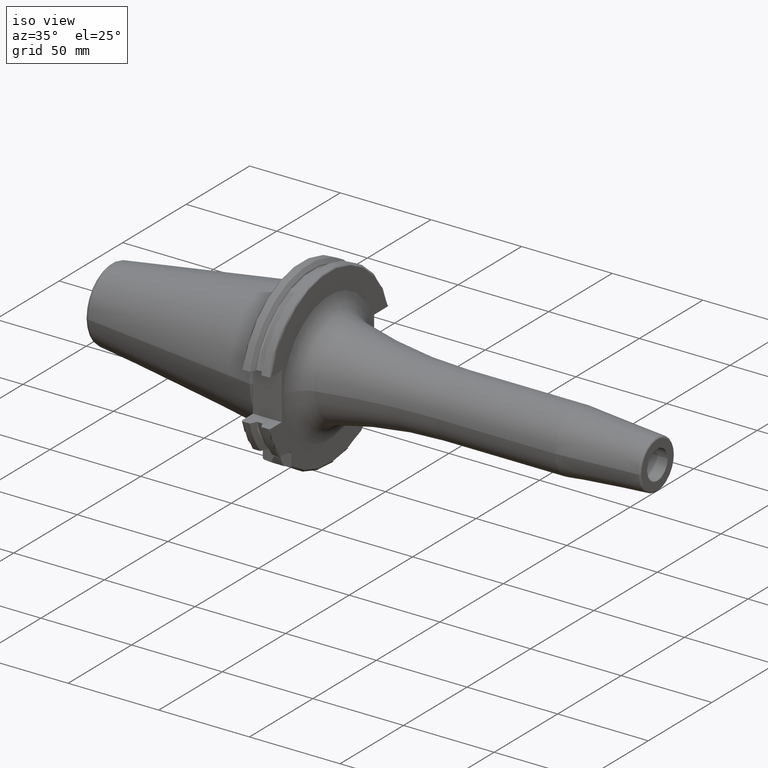
[diagram: clean part render]
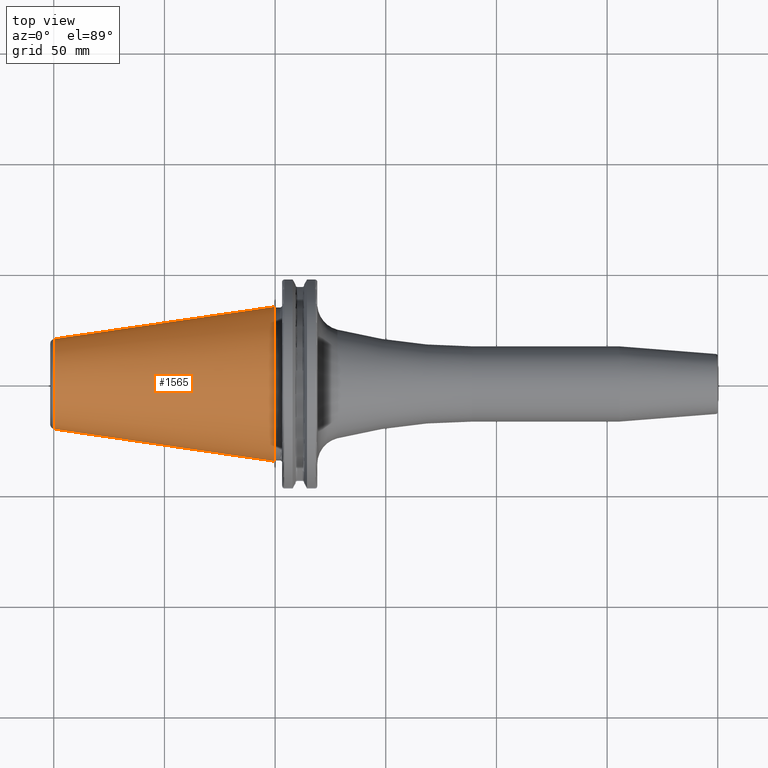
[diagram: tour spotlight — one face highlighted and labeled with its STEP entity id]
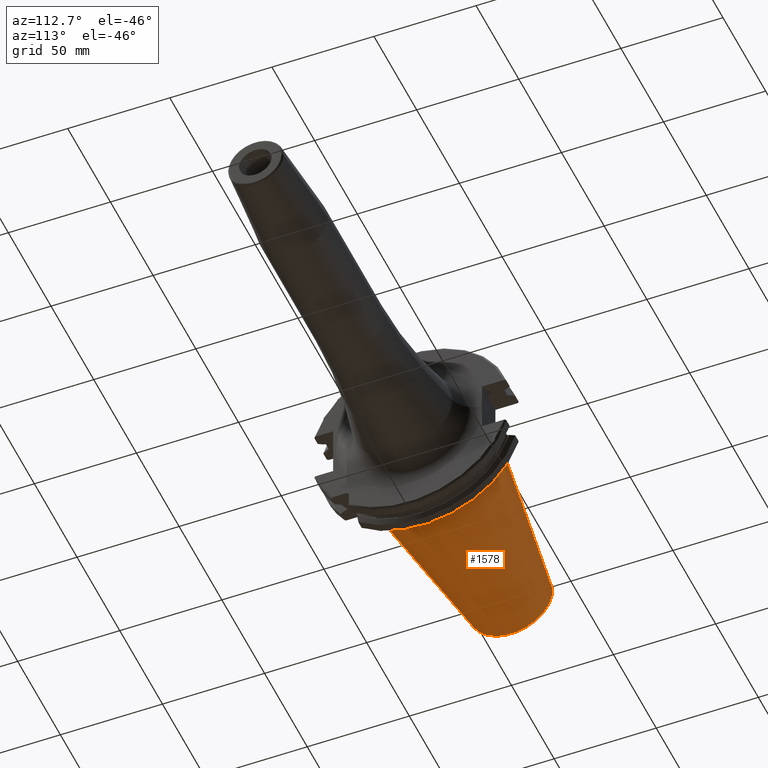
[diagram: tour spotlight — one face highlighted and labeled with its STEP entity id]
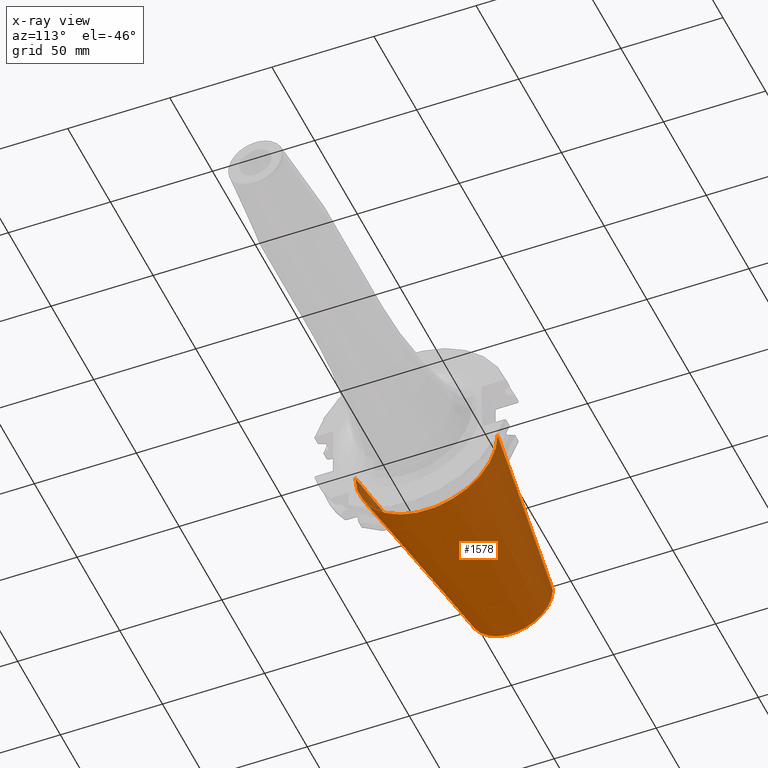
[diagram: x-ray of the same camera — body ghosted, this tour face saturated]
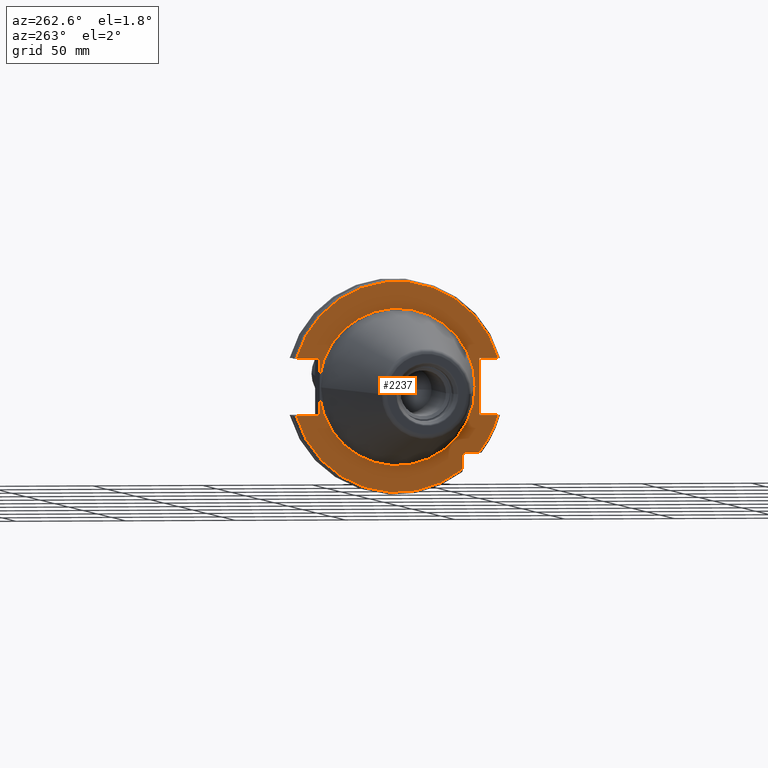
[diagram: tour spotlight — one face highlighted and labeled with its STEP entity id]
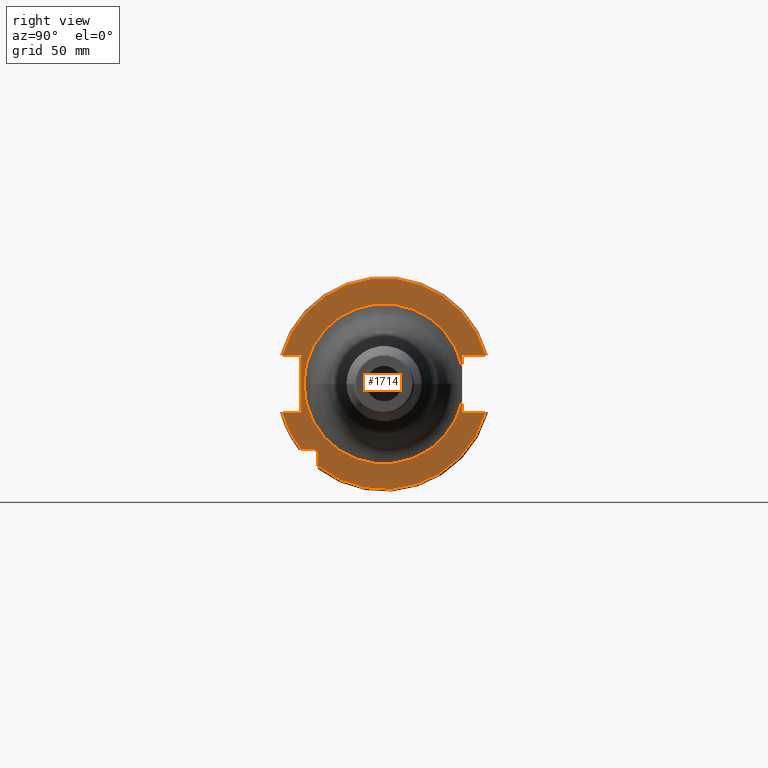
[diagram: tour spotlight — one face highlighted and labeled with its STEP entity id]
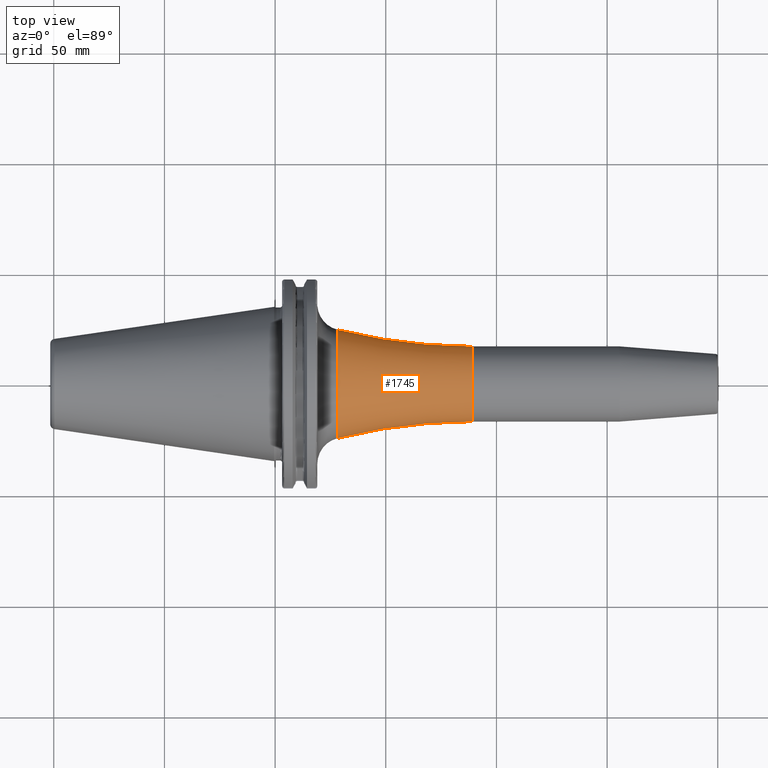
[diagram: tour spotlight — one face highlighted and labeled with its STEP entity id]
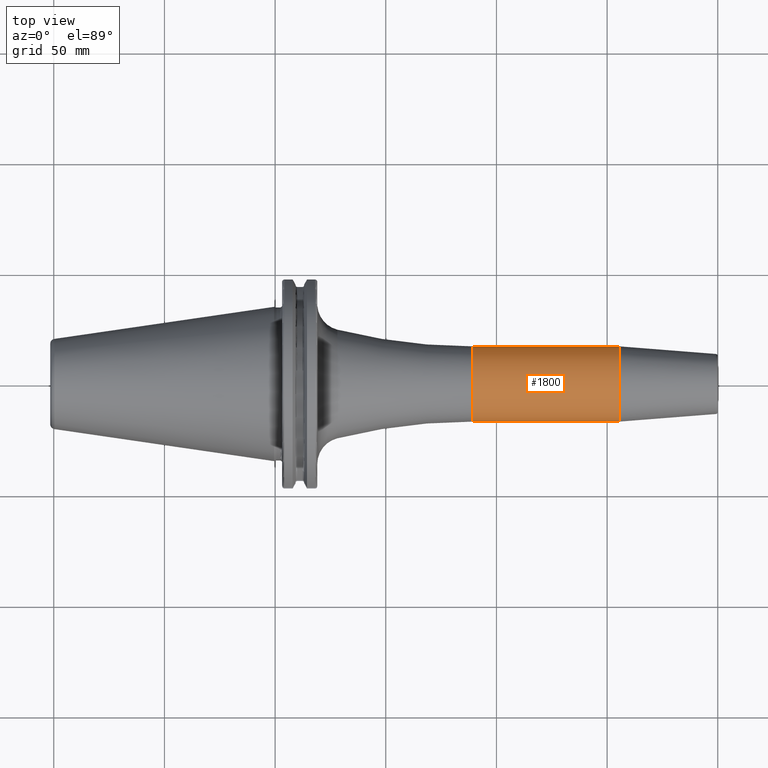
[diagram: tour spotlight — one face highlighted and labeled with its STEP entity id]
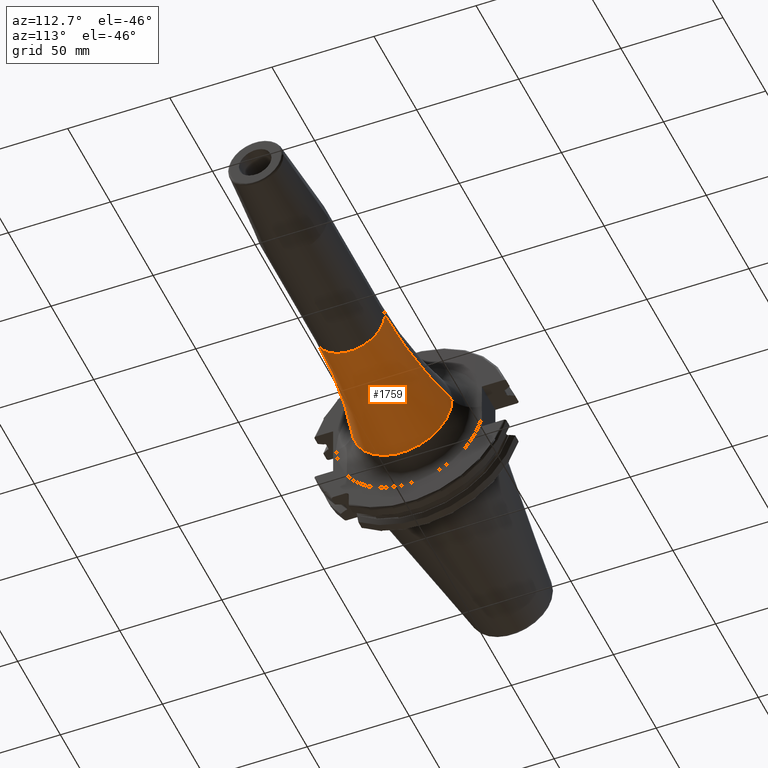
[diagram: tour spotlight — one face highlighted and labeled with its STEP entity id]
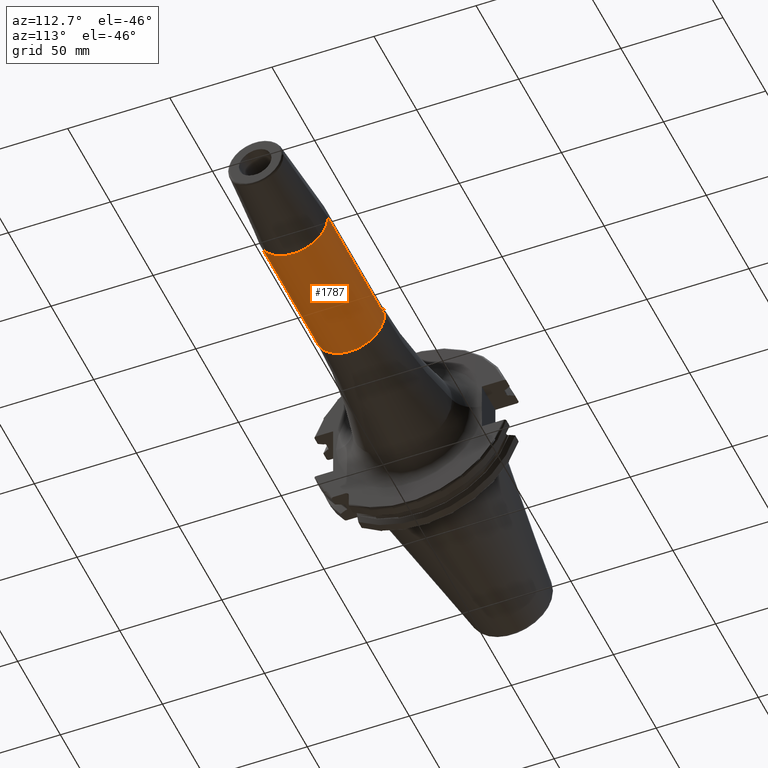
[diagram: tour spotlight — one face highlighted and labeled with its STEP entity id]
A machine part: a face-by-face anatomy tour. The part has 95 B-rep faces; the first image is the clean iso view, then the 8 largest visible faces are spotlighted one at a time (largest first), each with its STEP entity span.

Face 1 — top view, entity #1565. In plain terms, the highlighted conical surface has half-angle 8.298 deg.
Definition (entity closure, byte-faithful):
#37=CARTESIAN_POINT('',(-9.967471700563E1,0.E0,0.E0));
#38=DIRECTION('',(1.E0,0.E0,0.E0));
#39=DIRECTION('',(0.E0,1.E0,0.E0));
#40=AXIS2_PLACEMENT_3D('',#37,#38,#39);
#42=CARTESIAN_POINT('',(-4.896823332305E-1,0.E0,0.E0));
#43=DIRECTION('',(1.E0,0.E0,0.E0));
#44=DIRECTION('',(0.E0,1.E0,0.E0));
#45=AXIS2_PLACEMENT_3D('',#42,#43,#44);
#47=DIRECTION('',(-9.895312636440E-1,-1.443186691705E-1,0.E0));
#48=VECTOR('',#47,1.002343617797E2);
#49=CARTESIAN_POINT('',(-4.896823332305E-1,3.485358204157E1,0.E0));
#50=LINE('',#49,#48);
#51=DIRECTION('',(-9.895312636440E-1,1.443186691705E-1,0.E0));
#52=VECTOR('',#51,1.002343617797E2);
#53=CARTESIAN_POINT('',(-4.896823332305E-1,-3.485358204157E1,0.E0));
#54=LINE('',#53,#52);
#1244=CARTESIAN_POINT('',(-9.967471700563E1,2.038789234437E1,0.E0));
#1246=VERTEX_POINT('',#1244);
#1248=CARTESIAN_POINT('',(-9.967471700563E1,-2.038789234437E1,0.E0));
#1250=VERTEX_POINT('',#1248);
#1312=CARTESIAN_POINT('',(-4.896823332305E-1,3.485358204157E1,0.E0));
#1313=VERTEX_POINT('',#1312);
#1314=CARTESIAN_POINT('',(-4.896823332305E-1,-3.485358204157E1,0.E0));
#1315=VERTEX_POINT('',#1314);
#1551=CARTESIAN_POINT('',(-5.008219966943E1,0.E0,0.E0));
#1552=DIRECTION('',(1.E0,0.E0,0.E0));
#1553=DIRECTION('',(0.E0,-1.E0,0.E0));
#1554=AXIS2_PLACEMENT_3D('',#1551,#1552,#1553);
#1555=CONICAL_SURFACE('',#1554,2.762073719297E1,8.297826828206E0);
#1557=ORIENTED_EDGE('',*,*,#1556,.F.);
#1559=ORIENTED_EDGE('',*,*,#1558,.T.);
#1561=ORIENTED_EDGE('',*,*,#1560,.T.);
#1562=ORIENTED_EDGE('',*,*,#1544,.F.);
#1563=EDGE_LOOP('',(#1557,#1559,#1561,#1562));
#1564=FACE_OUTER_BOUND('',#1563,.F.);
#1565=ADVANCED_FACE('',(#1564),#1555,.T.);
#41=CIRCLE('',#40,2.038789234437E1);
#46=CIRCLE('',#45,3.485358204157E1);
#1544=EDGE_CURVE('',#1246,#1250,#41,.T.);
#1556=EDGE_CURVE('',#1313,#1246,#50,.T.);
#1558=EDGE_CURVE('',#1313,#1315,#46,.T.);
#1560=EDGE_CURVE('',#1315,#1250,#54,.T.);

Face 2 — auxiliary view, entity #1578. An x-ray twin of the same camera follows (body ghosted, this face saturated) — the face is partly hidden behind the body. In plain terms, the highlighted conical surface has half-angle 8.298 deg.
Definition (entity closure, byte-faithful):
#32=CARTESIAN_POINT('',(-9.967471700563E1,0.E0,0.E0));
#33=DIRECTION('',(-1.E0,0.E0,0.E0));
#34=DIRECTION('',(0.E0,1.E0,0.E0));
#35=AXIS2_PLACEMENT_3D('',#32,#33,#34);
#47=DIRECTION('',(-9.895312636440E-1,-1.443186691705E-1,0.E0));
#48=VECTOR('',#47,1.002343617797E2);
#49=CARTESIAN_POINT('',(-4.896823332305E-1,3.485358204157E1,0.E0));
#50=LINE('',#49,#48);
#51=DIRECTION('',(-9.895312636440E-1,1.443186691705E-1,0.E0));
#52=VECTOR('',#51,1.002343617797E2);
#53=CARTESIAN_POINT('',(-4.896823332305E-1,-3.485358204157E1,0.E0));
#54=LINE('',#53,#52);
#55=CARTESIAN_POINT('',(-4.896823332305E-1,0.E0,0.E0));
#56=DIRECTION('',(-1.E0,0.E0,0.E0));
#57=DIRECTION('',(0.E0,1.E0,0.E0));
#58=AXIS2_PLACEMENT_3D('',#55,#56,#57);
#1244=CARTESIAN_POINT('',(-9.967471700563E1,2.038789234437E1,0.E0));
#1246=VERTEX_POINT('',#1244);
#1248=CARTESIAN_POINT('',(-9.967471700563E1,-2.038789234437E1,0.E0));
#1250=VERTEX_POINT('',#1248);
#1312=CARTESIAN_POINT('',(-4.896823332305E-1,3.485358204157E1,0.E0));
#1313=VERTEX_POINT('',#1312);
#1314=CARTESIAN_POINT('',(-4.896823332305E-1,-3.485358204157E1,0.E0));
#1315=VERTEX_POINT('',#1314);
#1566=CARTESIAN_POINT('',(-5.008219966943E1,0.E0,0.E0));
#1567=DIRECTION('',(1.E0,0.E0,0.E0));
#1568=DIRECTION('',(0.E0,-1.E0,0.E0));
#1569=AXIS2_PLACEMENT_3D('',#1566,#1567,#1568);
#1570=CONICAL_SURFACE('',#1569,2.762073719297E1,8.297826828206E0);
#1571=ORIENTED_EDGE('',*,*,#1556,.T.);
#1572=ORIENTED_EDGE('',*,*,#1533,.T.);
#1573=ORIENTED_EDGE('',*,*,#1560,.F.);
#1575=ORIENTED_EDGE('',*,*,#1574,.F.);
#1576=EDGE_LOOP('',(#1571,#1572,#1573,#1575));
#1577=FACE_OUTER_BOUND('',#1576,.F.);
#1578=ADVANCED_FACE('',(#1577),#1570,.T.);
#36=CIRCLE('',#35,2.038789234437E1);
#59=CIRCLE('',#58,3.485358204157E1);
#1533=EDGE_CURVE('',#1246,#1250,#36,.T.);
#1556=EDGE_CURVE('',#1313,#1246,#50,.T.);
#1560=EDGE_CURVE('',#1315,#1250,#54,.T.);
#1574=EDGE_CURVE('',#1313,#1315,#59,.T.);

Face 3 — auxiliary view, entity #2237. In plain terms, the highlighted planar face has unit normal (1, 0, 0).
Definition (entity closure, byte-faithful):
#117=CARTESIAN_POINT('',(3.2E0,0.E0,0.E0));
#118=DIRECTION('',(-1.E0,0.E0,0.E0));
#119=DIRECTION('',(0.E0,9.922698524245E-1,-1.240989120402E-1));
#120=AXIS2_PLACEMENT_3D('',#117,#118,#119);
#554=DIRECTION('',(0.E0,-1.E0,0.E0));
#555=VECTOR('',#554,5.653810627237E0);
#556=CARTESIAN_POINT('',(3.2E0,-3.16E1,-2.985E1));
#557=LINE('',#556,#555);
#558=DIRECTION('',(0.E0,0.E0,1.E0));
#559=VECTOR('',#558,5.653810627237E0);
#560=CARTESIAN_POINT('',(3.2E0,-2.985E1,-3.725381062724E1));
#561=LINE('',#560,#559);
#562=CARTESIAN_POINT('',(3.2E0,0.E0,0.E0));
#563=DIRECTION('',(-1.E0,0.E0,0.E0));
#564=DIRECTION('',(0.E0,9.627964123359E-1,-2.702278083268E-1));
#565=AXIS2_PLACEMENT_3D('',#562,#563,#564);
#567=DIRECTION('',(0.E0,-1.E0,0.E0));
#568=VECTOR('',#567,1.066149373389E1);
#569=CARTESIAN_POINT('',(3.2E0,4.596149373389E1,-1.29E1));
#570=LINE('',#569,#568);
#571=DIRECTION('',(0.E0,0.E0,-1.E0));
#572=VECTOR('',#571,8.485181204172E0);
#573=CARTESIAN_POINT('',(3.2E0,3.53E1,-4.414818795828E0));
#574=LINE('',#573,#572);
#575=DIRECTION('',(0.E0,0.E0,-1.E0));
#576=VECTOR('',#575,8.485181204172E0);
#577=CARTESIAN_POINT('',(3.2E0,3.53E1,1.29E1));
#578=LINE('',#577,#576);
#579=DIRECTION('',(0.E0,-1.E0,0.E0));
#580=VECTOR('',#579,1.066149373389E1);
#581=CARTESIAN_POINT('',(3.2E0,4.596149373389E1,1.29E1));
#582=LINE('',#581,#580);
#583=CARTESIAN_POINT('',(3.2E0,0.E0,0.E0));
#584=DIRECTION('',(1.E0,0.E0,0.E0));
#585=DIRECTION('',(0.E0,9.627964123359E-1,2.702278083268E-1));
#586=AXIS2_PLACEMENT_3D('',#583,#584,#585);
#588=DIRECTION('',(0.E0,1.E0,0.E0));
#589=VECTOR('',#588,8.461493733886E0);
#590=CARTESIAN_POINT('',(3.2E0,-4.596149373389E1,1.29E1));
#591=LINE('',#590,#589);
#592=DIRECTION('',(0.E0,0.E0,1.E0));
#593=VECTOR('',#592,2.58E1);
#594=CARTESIAN_POINT('',(3.2E0,-3.75E1,-1.29E1));
#595=LINE('',#594,#593);
#596=DIRECTION('',(0.E0,1.E0,0.E0));
#597=VECTOR('',#596,8.461493733886E0);
#598=CARTESIAN_POINT('',(3.2E0,-4.596149373389E1,-1.29E1));
#599=LINE('',#598,#597);
#600=CARTESIAN_POINT('',(3.2E0,0.E0,0.E0));
#601=DIRECTION('',(-1.E0,0.E0,0.E0));
#602=DIRECTION('',(0.E0,-7.803888060170E-1,-6.252945797329E-1));
#603=AXIS2_PLACEMENT_3D('',#600,#601,#602);
#614=CARTESIAN_POINT('',(3.2E0,-3.16E1,-3.16E1));
#615=DIRECTION('',(1.E0,0.E0,0.E0));
#616=DIRECTION('',(0.E0,1.E0,0.E0));
#617=AXIS2_PLACEMENT_3D('',#614,#615,#616);
#780=CARTESIAN_POINT('',(3.2E0,-3.725381062724E1,-2.985E1));
#1006=CARTESIAN_POINT('',(3.2E0,0.E0,0.E0));
#1007=DIRECTION('',(1.E0,0.E0,0.E0));
#1008=DIRECTION('',(0.E0,9.922698524245E-1,1.240989120402E-1));
#1009=AXIS2_PLACEMENT_3D('',#1006,#1007,#1008);
#1256=CARTESIAN_POINT('',(3.2E0,-3.5575E1,0.E0));
#1258=VERTEX_POINT('',#1256);
#1390=CARTESIAN_POINT('',(3.2E0,4.596149373389E1,1.29E1));
#1391=CARTESIAN_POINT('',(3.2E0,3.53E1,1.29E1));
#1392=VERTEX_POINT('',#1390);
#1393=VERTEX_POINT('',#1391);
#1394=CARTESIAN_POINT('',(3.2E0,3.53E1,4.414818795828E0));
#1395=VERTEX_POINT('',#1394);
#1396=CARTESIAN_POINT('',(3.2E0,3.53E1,-4.414818795828E0));
#1397=CARTESIAN_POINT('',(3.2E0,3.53E1,-1.29E1));
#1398=VERTEX_POINT('',#1396);
#1399=VERTEX_POINT('',#1397);
#1400=CARTESIAN_POINT('',(3.2E0,4.596149373389E1,-1.29E1));
#1401=VERTEX_POINT('',#1400);
#1402=CARTESIAN_POINT('',(3.2E0,-4.596149373389E1,-1.29E1));
#1403=CARTESIAN_POINT('',(3.2E0,-3.75E1,-1.29E1));
#1404=VERTEX_POINT('',#1402);
#1405=VERTEX_POINT('',#1403);
#1406=CARTESIAN_POINT('',(3.2E0,-3.75E1,1.29E1));
#1407=VERTEX_POINT('',#1406);
#1408=CARTESIAN_POINT('',(3.2E0,-4.596149373389E1,1.29E1));
#1409=VERTEX_POINT('',#1408);
#1441=CARTESIAN_POINT('',(3.2E0,-2.985E1,-3.725381062724E1));
#1442=VERTEX_POINT('',#1441);
#1447=CARTESIAN_POINT('',(3.2E0,-2.985E1,-3.16E1));
#1448=CARTESIAN_POINT('',(3.2E0,-3.16E1,-2.985E1));
#1449=VERTEX_POINT('',#1447);
#1450=VERTEX_POINT('',#1448);
#1469=VERTEX_POINT('',#780);
#2207=CARTESIAN_POINT('',(3.2E0,0.E0,0.E0));
#2208=DIRECTION('',(1.E0,0.E0,0.E0));
#2209=DIRECTION('',(0.E0,-1.E0,0.E0));
#2210=AXIS2_PLACEMENT_3D('',#2207,#2208,#2209);
#2211=PLANE('',#2210);
#2213=ORIENTED_EDGE('',*,*,#2212,.F.);
#2215=ORIENTED_EDGE('',*,*,#2214,.F.);
#2217=ORIENTED_EDGE('',*,*,#2216,.F.);
#2219=ORIENTED_EDGE('',*,*,#2218,.F.);
#2220=ORIENTED_EDGE('',*,*,#1934,.T.);
#2221=ORIENTED_EDGE('',*,*,#1672,.F.);
#2222=ORIENTED_EDGE('',*,*,#1647,.T.);
#2224=ORIENTED_EDGE('',*,*,#2223,.F.);
#2225=ORIENTED_EDGE('',*,*,#1667,.F.);
#2226=ORIENTED_EDGE('',*,*,#2004,.F.);
#2227=ORIENTED_EDGE('',*,*,#2202,.T.);
#2228=ORIENTED_EDGE('',*,*,#2062,.T.);
#2230=ORIENTED_EDGE('',*,*,#2229,.F.);
#2232=ORIENTED_EDGE('',*,*,#2231,.F.);
#2234=ORIENTED_EDGE('',*,*,#2233,.F.);
#2235=EDGE_LOOP('',(#2213,#2215,#2217,#2219,#2220,#2221,#2222,#2224,#2225,#2226,
#2227,#2228,#2230,#2232,#2234));
#2236=FACE_OUTER_BOUND('',#2235,.F.);
#2237=ADVANCED_FACE('',(#2236),#2211,.F.);
#121=CIRCLE('',#120,3.5575E1);
#566=CIRCLE('',#565,4.77375E1);
#587=CIRCLE('',#586,4.77375E1);
#604=CIRCLE('',#603,4.77375E1);
#618=CIRCLE('',#617,1.75E0);
#1010=CIRCLE('',#1009,3.5575E1);
#1647=EDGE_CURVE('',#1398,#1258,#121,.T.);
#1667=EDGE_CURVE('',#1393,#1395,#578,.T.);
#1672=EDGE_CURVE('',#1398,#1399,#574,.T.);
#1934=EDGE_CURVE('',#1401,#1399,#570,.T.);
#2004=EDGE_CURVE('',#1392,#1393,#582,.T.);
#2062=EDGE_CURVE('',#1409,#1407,#591,.T.);
#2202=EDGE_CURVE('',#1392,#1409,#587,.T.);
#2212=EDGE_CURVE('',#1450,#1469,#557,.T.);
#2214=EDGE_CURVE('',#1449,#1450,#618,.T.);
#2216=EDGE_CURVE('',#1442,#1449,#561,.T.);
#2218=EDGE_CURVE('',#1401,#1442,#566,.T.);
#2223=EDGE_CURVE('',#1395,#1258,#1010,.T.);
#2229=EDGE_CURVE('',#1405,#1407,#595,.T.);
#2231=EDGE_CURVE('',#1404,#1405,#599,.T.);
#2233=EDGE_CURVE('',#1469,#1404,#604,.T.);

Face 4 — right view, entity #1714. In plain terms, the highlighted planar face has unit normal (1, 0, 0).
Definition (entity closure, byte-faithful):
#126=CARTESIAN_POINT('',(1.905E1,0.E0,0.E0));
#127=DIRECTION('',(1.E0,0.E0,0.E0));
#128=DIRECTION('',(0.E0,9.758055008668E-1,2.186403999222E-1));
#129=AXIS2_PLACEMENT_3D('',#126,#127,#128);
#131=CARTESIAN_POINT('',(1.905E1,0.E0,0.E0));
#132=DIRECTION('',(1.E0,0.E0,0.E0));
#133=DIRECTION('',(0.E0,-1.E0,0.E0));
#134=AXIS2_PLACEMENT_3D('',#131,#132,#133);
#136=DIRECTION('',(0.E0,7.284698685636E-6,-9.999999999735E-1));
#137=VECTOR('',#136,4.990089729854E0);
#138=CARTESIAN_POINT('',(1.905E1,3.529996364870E1,-7.909910270279E0));
#139=LINE('',#138,#137);
#140=DIRECTION('',(0.E0,-1.E0,0.E0));
#141=VECTOR('',#140,1.066149373389E1);
#142=CARTESIAN_POINT('',(1.905E1,4.596149373389E1,-1.29E1));
#143=LINE('',#142,#141);
#144=DIRECTION('',(0.E0,0.E0,1.E0));
#145=VECTOR('',#144,5.653810627237E0);
#146=CARTESIAN_POINT('',(1.905E1,-2.985E1,-3.725381062724E1));
#147=LINE('',#146,#145);
#148=DIRECTION('',(0.E0,-1.E0,0.E0));
#149=VECTOR('',#148,5.653810627237E0);
#150=CARTESIAN_POINT('',(1.905E1,-3.16E1,-2.985E1));
#151=LINE('',#150,#149);
#152=DIRECTION('',(0.E0,1.E0,0.E0));
#153=VECTOR('',#152,8.461493733886E0);
#154=CARTESIAN_POINT('',(1.905E1,-4.596149373389E1,-1.29E1));
#155=LINE('',#154,#153);
#156=DIRECTION('',(0.E0,0.E0,1.E0));
#157=VECTOR('',#156,2.58E1);
#158=CARTESIAN_POINT('',(1.905E1,-3.75E1,-1.29E1));
#159=LINE('',#158,#157);
#160=DIRECTION('',(0.E0,1.E0,0.E0));
#161=VECTOR('',#160,8.461493733886E0);
#162=CARTESIAN_POINT('',(1.905E1,-4.596149373389E1,1.29E1));
#163=LINE('',#162,#161);
#164=DIRECTION('',(0.E0,-1.E0,0.E0));
#165=VECTOR('',#164,1.066149373389E1);
#166=CARTESIAN_POINT('',(1.905E1,4.596149373389E1,1.29E1));
#167=LINE('',#166,#165);
#168=DIRECTION('',(0.E0,-7.652975920354E-6,-9.999999999707E-1));
#169=VECTOR('',#168,4.990004706070E0);
#170=CARTESIAN_POINT('',(1.905E1,3.53E1,1.29E1));
#171=LINE('',#170,#169);
#609=CARTESIAN_POINT('',(1.905E1,-3.16E1,-3.16E1));
#610=DIRECTION('',(-1.E0,0.E0,0.E0));
#611=DIRECTION('',(0.E0,0.E0,1.E0));
#612=AXIS2_PLACEMENT_3D('',#609,#610,#611);
#644=CARTESIAN_POINT('',(1.905E1,0.E0,0.E0));
#645=DIRECTION('',(-1.E0,0.E0,0.E0));
#646=DIRECTION('',(0.E0,9.627964123359E-1,-2.702278083268E-1));
#647=AXIS2_PLACEMENT_3D('',#644,#645,#646);
#660=CARTESIAN_POINT('',(1.905E1,0.E0,0.E0));
#661=DIRECTION('',(-1.E0,0.E0,0.E0));
#662=DIRECTION('',(0.E0,-7.803888060170E-1,-6.252945797329E-1));
#663=AXIS2_PLACEMENT_3D('',#660,#661,#662);
#674=CARTESIAN_POINT('',(1.905E1,-3.725381062724E1,-2.985E1));
#1022=CARTESIAN_POINT('',(1.905E1,0.E0,0.E0));
#1023=DIRECTION('',(1.E0,0.E0,0.E0));
#1024=DIRECTION('',(0.E0,9.627964123359E-1,2.702278083268E-1));
#1025=AXIS2_PLACEMENT_3D('',#1022,#1023,#1024);
#1366=CARTESIAN_POINT('',(1.905E1,4.596149373389E1,1.29E1));
#1367=CARTESIAN_POINT('',(1.905E1,3.53E1,1.29E1));
#1368=VERTEX_POINT('',#1366);
#1369=VERTEX_POINT('',#1367);
#1370=CARTESIAN_POINT('',(1.905E1,4.596149373389E1,-1.29E1));
#1371=CARTESIAN_POINT('',(1.905E1,3.53E1,-1.29E1));
#1372=VERTEX_POINT('',#1370);
#1373=VERTEX_POINT('',#1371);
#1374=CARTESIAN_POINT('',(1.905E1,-4.596149373389E1,-1.29E1));
#1375=CARTESIAN_POINT('',(1.905E1,-3.75E1,-1.29E1));
#1376=VERTEX_POINT('',#1374);
#1377=VERTEX_POINT('',#1375);
#1378=CARTESIAN_POINT('',(1.905E1,-3.75E1,1.29E1));
#1379=VERTEX_POINT('',#1378);
#1380=CARTESIAN_POINT('',(1.905E1,-4.596149373389E1,1.29E1));
#1381=VERTEX_POINT('',#1380);
#1435=CARTESIAN_POINT('',(1.905E1,-2.985E1,-3.725381062724E1));
#1436=VERTEX_POINT('',#1435);
#1443=CARTESIAN_POINT('',(1.905E1,-3.16E1,-2.985E1));
#1444=CARTESIAN_POINT('',(1.905E1,-2.985E1,-3.16E1));
#1445=VERTEX_POINT('',#1443);
#1446=VERTEX_POINT('',#1444);
#1468=VERTEX_POINT('',#674);
#1498=CARTESIAN_POINT('',(1.905E1,3.530014578746E1,7.909402012415E0));
#1499=CARTESIAN_POINT('',(1.905E1,-3.617539125994E1,1.323385845353E-13));
#1500=VERTEX_POINT('',#1498);
#1501=VERTEX_POINT('',#1499);
#1502=CARTESIAN_POINT('',(1.905E1,3.530019495966E1,-7.909182550669E0));
#1503=VERTEX_POINT('',#1502);
#1679=CARTESIAN_POINT('',(1.905E1,0.E0,0.E0));
#1680=DIRECTION('',(1.E0,0.E0,0.E0));
#1681=DIRECTION('',(0.E0,-1.E0,0.E0));
#1682=AXIS2_PLACEMENT_3D('',#1679,#1680,#1681);
#1683=PLANE('',#1682);
#1685=ORIENTED_EDGE('',*,*,#1684,.T.);
#1687=ORIENTED_EDGE('',*,*,#1686,.T.);
#1688=ORIENTED_EDGE('',*,*,#1657,.T.);
#1690=ORIENTED_EDGE('',*,*,#1689,.F.);
#1692=ORIENTED_EDGE('',*,*,#1691,.T.);
#1694=ORIENTED_EDGE('',*,*,#1693,.T.);
#1696=ORIENTED_EDGE('',*,*,#1695,.F.);
#1698=ORIENTED_EDGE('',*,*,#1697,.T.);
#1700=ORIENTED_EDGE('',*,*,#1699,.T.);
#1702=ORIENTED_EDGE('',*,*,#1701,.T.);
#1704=ORIENTED_EDGE('',*,*,#1703,.T.);
#1706=ORIENTED_EDGE('',*,*,#1705,.F.);
#1708=ORIENTED_EDGE('',*,*,#1707,.F.);
#1710=ORIENTED_EDGE('',*,*,#1709,.T.);
#1711=ORIENTED_EDGE('',*,*,#1663,.T.);
#1712=EDGE_LOOP('',(#1685,#1687,#1688,#1690,#1692,#1694,#1696,#1698,#1700,#1702,
#1704,#1706,#1708,#1710,#1711));
#1713=FACE_OUTER_BOUND('',#1712,.F.);
#1714=ADVANCED_FACE('',(#1713),#1683,.T.);
#130=CIRCLE('',#129,3.617539125994E1);
#135=CIRCLE('',#134,3.617539125994E1);
#613=CIRCLE('',#612,1.75E0);
#648=CIRCLE('',#647,4.77375E1);
#664=CIRCLE('',#663,4.77375E1);
#1026=CIRCLE('',#1025,4.77375E1);
#1657=EDGE_CURVE('',#1503,#1373,#139,.T.);
#1663=EDGE_CURVE('',#1369,#1500,#171,.T.);
#1684=EDGE_CURVE('',#1500,#1501,#130,.T.);
#1686=EDGE_CURVE('',#1501,#1503,#135,.T.);
#1689=EDGE_CURVE('',#1372,#1373,#143,.T.);
#1691=EDGE_CURVE('',#1372,#1436,#648,.T.);
#1693=EDGE_CURVE('',#1436,#1446,#147,.T.);
#1695=EDGE_CURVE('',#1445,#1446,#613,.T.);
#1697=EDGE_CURVE('',#1445,#1468,#151,.T.);
#1699=EDGE_CURVE('',#1468,#1376,#664,.T.);
#1701=EDGE_CURVE('',#1376,#1377,#155,.T.);
#1703=EDGE_CURVE('',#1377,#1379,#159,.T.);
#1705=EDGE_CURVE('',#1381,#1379,#163,.T.);
#1707=EDGE_CURVE('',#1368,#1381,#1026,.T.);
#1709=EDGE_CURVE('',#1368,#1369,#167,.T.);

Face 5 — top view, entity #1745. In plain terms, the highlighted toroidal blend (fillet) surface has major radius 267 mm and minor (blend) radius 250 mm.
Definition (entity closure, byte-faithful):
#184=CARTESIAN_POINT('',(2.812563025210E1,0.E0,0.E0));
#185=DIRECTION('',(1.E0,0.E0,0.E0));
#186=DIRECTION('',(0.E0,1.E0,0.E0));
#187=AXIS2_PLACEMENT_3D('',#184,#185,#186);
#194=CARTESIAN_POINT('',(8.905E1,-2.67E2,-6.539613907447E-14));
#195=DIRECTION('',(0.E0,0.E0,1.E0));
#196=DIRECTION('',(0.E0,1.E0,0.E0));
#197=AXIS2_PLACEMENT_3D('',#194,#195,#196);
#199=CARTESIAN_POINT('',(8.905E1,2.67E2,3.269806953723E-14));
#200=DIRECTION('',(0.E0,0.E0,-1.E0));
#201=DIRECTION('',(0.E0,-1.E0,0.E0));
#202=AXIS2_PLACEMENT_3D('',#199,#200,#201);
#234=CARTESIAN_POINT('',(8.905E1,0.E0,0.E0));
#235=DIRECTION('',(1.E0,0.E0,0.E0));
#236=DIRECTION('',(0.E0,1.E0,0.E0));
#237=AXIS2_PLACEMENT_3D('',#234,#235,#236);
#1490=CARTESIAN_POINT('',(8.905E1,1.7E1,0.E0));
#1491=CARTESIAN_POINT('',(8.905E1,-1.7E1,0.E0));
#1492=VERTEX_POINT('',#1490);
#1493=VERTEX_POINT('',#1491);
#1494=CARTESIAN_POINT('',(2.812563025210E1,2.453717569322E1,0.E0));
#1495=CARTESIAN_POINT('',(2.812563025210E1,-2.453717569322E1,0.E0));
#1496=VERTEX_POINT('',#1494);
#1497=VERTEX_POINT('',#1495);
#1731=CARTESIAN_POINT('',(8.905E1,0.E0,0.E0));
#1732=DIRECTION('',(1.E0,0.E0,0.E0));
#1733=DIRECTION('',(0.E0,-1.E0,0.E0));
#1734=AXIS2_PLACEMENT_3D('',#1731,#1732,#1733);
#1735=TOROIDAL_SURFACE('',#1734,2.67E2,2.5E2);
#1736=ORIENTED_EDGE('',*,*,#1720,.F.);
#1738=ORIENTED_EDGE('',*,*,#1737,.F.);
#1740=ORIENTED_EDGE('',*,*,#1739,.T.);
#1742=ORIENTED_EDGE('',*,*,#1741,.T.);
#1743=EDGE_LOOP('',(#1736,#1738,#1740,#1742));
#1744=FACE_OUTER_BOUND('',#1743,.F.);
#1745=ADVANCED_FACE('',(#1744),#1735,.F.);
#188=CIRCLE('',#187,2.453717569322E1);
#198=CIRCLE('',#197,2.5E2);
#203=CIRCLE('',#202,2.5E2);
#238=CIRCLE('',#237,1.7E1);
#1720=EDGE_CURVE('',#1496,#1497,#188,.T.);
#1737=EDGE_CURVE('',#1492,#1496,#203,.T.);
#1739=EDGE_CURVE('',#1492,#1493,#238,.T.);
#1741=EDGE_CURVE('',#1493,#1497,#198,.T.);

Face 6 — top view, entity #1800. In plain terms, the highlighted cylindrical surface (partial cylindrical patch) has radius 17 mm, axis along (1, 0, 0).
Definition (entity closure, byte-faithful):
#221=DIRECTION('',(-1.E0,0.E0,0.E0));
#222=VECTOR('',#221,6.647828342339E1);
#223=CARTESIAN_POINT('',(1.555282834234E2,-1.7E1,0.E0));
#224=LINE('',#223,#222);
#230=DIRECTION('',(-1.E0,0.E0,0.E0));
#231=VECTOR('',#230,6.647828342339E1);
#232=CARTESIAN_POINT('',(1.555282834234E2,1.7E1,0.E0));
#233=LINE('',#232,#231);
#234=CARTESIAN_POINT('',(8.905E1,0.E0,0.E0));
#235=DIRECTION('',(1.E0,0.E0,0.E0));
#236=DIRECTION('',(0.E0,1.E0,0.E0));
#237=AXIS2_PLACEMENT_3D('',#234,#235,#236);
#239=CARTESIAN_POINT('',(1.555282834234E2,0.E0,0.E0));
#240=DIRECTION('',(1.E0,0.E0,0.E0));
#241=DIRECTION('',(0.E0,1.E0,0.E0));
#242=AXIS2_PLACEMENT_3D('',#239,#240,#241);
#1470=CARTESIAN_POINT('',(1.555282834234E2,1.7E1,0.E0));
#1471=CARTESIAN_POINT('',(1.555282834234E2,-1.7E1,0.E0));
#1472=VERTEX_POINT('',#1470);
#1473=VERTEX_POINT('',#1471);
#1490=CARTESIAN_POINT('',(8.905E1,1.7E1,0.E0));
#1491=CARTESIAN_POINT('',(8.905E1,-1.7E1,0.E0));
#1492=VERTEX_POINT('',#1490);
#1493=VERTEX_POINT('',#1491);
#1788=CARTESIAN_POINT('',(1.00025E1,0.E0,0.E0));
#1789=DIRECTION('',(1.E0,0.E0,0.E0));
#1790=DIRECTION('',(0.E0,-1.E0,0.E0));
#1791=AXIS2_PLACEMENT_3D('',#1788,#1789,#1790);
#1792=CYLINDRICAL_SURFACE('',#1791,1.7E1);
#1793=ORIENTED_EDGE('',*,*,#1739,.F.);
#1794=ORIENTED_EDGE('',*,*,#1783,.F.);
#1796=ORIENTED_EDGE('',*,*,#1795,.T.);
#1797=ORIENTED_EDGE('',*,*,#1779,.T.);
#1798=EDGE_LOOP('',(#1793,#1794,#1796,#1797));
#1799=FACE_OUTER_BOUND('',#1798,.F.);
#1800=ADVANCED_FACE('',(#1799),#1792,.T.);
#238=CIRCLE('',#237,1.7E1);
#243=CIRCLE('',#242,1.7E1);
#1739=EDGE_CURVE('',#1492,#1493,#238,.T.);
#1779=EDGE_CURVE('',#1473,#1493,#224,.T.);
#1783=EDGE_CURVE('',#1472,#1492,#233,.T.);
#1795=EDGE_CURVE('',#1472,#1473,#243,.T.);

Face 7 — auxiliary view, entity #1759. In plain terms, the highlighted toroidal blend (fillet) surface has major radius 267 mm and minor (blend) radius 250 mm.
Definition (entity closure, byte-faithful):
#189=CARTESIAN_POINT('',(2.812563025210E1,0.E0,0.E0));
#190=DIRECTION('',(1.E0,0.E0,0.E0));
#191=DIRECTION('',(0.E0,-1.E0,0.E0));
#192=AXIS2_PLACEMENT_3D('',#189,#190,#191);
#194=CARTESIAN_POINT('',(8.905E1,-2.67E2,-6.539613907447E-14));
#195=DIRECTION('',(0.E0,0.E0,1.E0));
#196=DIRECTION('',(0.E0,1.E0,0.E0));
#197=AXIS2_PLACEMENT_3D('',#194,#195,#196);
#199=CARTESIAN_POINT('',(8.905E1,2.67E2,3.269806953723E-14));
#200=DIRECTION('',(0.E0,0.E0,-1.E0));
#201=DIRECTION('',(0.E0,-1.E0,0.E0));
#202=AXIS2_PLACEMENT_3D('',#199,#200,#201);
#216=CARTESIAN_POINT('',(8.905E1,0.E0,0.E0));
#217=DIRECTION('',(1.E0,0.E0,0.E0));
#218=DIRECTION('',(0.E0,-1.E0,0.E0));
#219=AXIS2_PLACEMENT_3D('',#216,#217,#218);
#1490=CARTESIAN_POINT('',(8.905E1,1.7E1,0.E0));
#1491=CARTESIAN_POINT('',(8.905E1,-1.7E1,0.E0));
#1492=VERTEX_POINT('',#1490);
#1493=VERTEX_POINT('',#1491);
#1494=CARTESIAN_POINT('',(2.812563025210E1,2.453717569322E1,0.E0));
#1495=CARTESIAN_POINT('',(2.812563025210E1,-2.453717569322E1,0.E0));
#1496=VERTEX_POINT('',#1494);
#1497=VERTEX_POINT('',#1495);
#1746=CARTESIAN_POINT('',(8.905E1,0.E0,0.E0));
#1747=DIRECTION('',(1.E0,0.E0,0.E0));
#1748=DIRECTION('',(0.E0,-1.E0,0.E0));
#1749=AXIS2_PLACEMENT_3D('',#1746,#1747,#1748);
#1750=TOROIDAL_SURFACE('',#1749,2.67E2,2.5E2);
#1752=ORIENTED_EDGE('',*,*,#1751,.F.);
#1753=ORIENTED_EDGE('',*,*,#1741,.F.);
#1755=ORIENTED_EDGE('',*,*,#1754,.T.);
#1756=ORIENTED_EDGE('',*,*,#1737,.T.);
#1757=EDGE_LOOP('',(#1752,#1753,#1755,#1756));
#1758=FACE_OUTER_BOUND('',#1757,.F.);
#1759=ADVANCED_FACE('',(#1758),#1750,.F.);
#193=CIRCLE('',#192,2.453717569322E1);
#198=CIRCLE('',#197,2.5E2);
#203=CIRCLE('',#202,2.5E2);
#220=CIRCLE('',#219,1.7E1);
#1737=EDGE_CURVE('',#1492,#1496,#203,.T.);
#1741=EDGE_CURVE('',#1493,#1497,#198,.T.);
#1751=EDGE_CURVE('',#1497,#1496,#193,.T.);
#1754=EDGE_CURVE('',#1493,#1492,#220,.T.);

Face 8 — auxiliary view, entity #1787. In plain terms, the highlighted cylindrical surface (partial cylindrical patch) has radius 17 mm, axis along (1, 0, 0).
Definition (entity closure, byte-faithful):
#216=CARTESIAN_POINT('',(8.905E1,0.E0,0.E0));
#217=DIRECTION('',(1.E0,0.E0,0.E0));
#218=DIRECTION('',(0.E0,-1.E0,0.E0));
#219=AXIS2_PLACEMENT_3D('',#216,#217,#218);
#221=DIRECTION('',(-1.E0,0.E0,0.E0));
#222=VECTOR('',#221,6.647828342339E1);
#223=CARTESIAN_POINT('',(1.555282834234E2,-1.7E1,0.E0));
#224=LINE('',#223,#222);
#225=CARTESIAN_POINT('',(1.555282834234E2,0.E0,0.E0));
#226=DIRECTION('',(-1.E0,0.E0,0.E0));
#227=DIRECTION('',(0.E0,1.E0,0.E0));
#228=AXIS2_PLACEMENT_3D('',#225,#226,#227);
#230=DIRECTION('',(-1.E0,0.E0,0.E0));
#231=VECTOR('',#230,6.647828342339E1);
#232=CARTESIAN_POINT('',(1.555282834234E2,1.7E1,0.E0));
#233=LINE('',#232,#231);
#1470=CARTESIAN_POINT('',(1.555282834234E2,1.7E1,0.E0));
#1471=CARTESIAN_POINT('',(1.555282834234E2,-1.7E1,0.E0));
#1472=VERTEX_POINT('',#1470);
#1473=VERTEX_POINT('',#1471);
#1490=CARTESIAN_POINT('',(8.905E1,1.7E1,0.E0));
#1491=CARTESIAN_POINT('',(8.905E1,-1.7E1,0.E0));
#1492=VERTEX_POINT('',#1490);
#1493=VERTEX_POINT('',#1491);
#1773=CARTESIAN_POINT('',(1.00025E1,0.E0,0.E0));
#1774=DIRECTION('',(1.E0,0.E0,0.E0));
#1775=DIRECTION('',(0.E0,-1.E0,0.E0));
#1776=AXIS2_PLACEMENT_3D('',#1773,#1774,#1775);
#1777=CYLINDRICAL_SURFACE('',#1776,1.7E1);
#1778=ORIENTED_EDGE('',*,*,#1754,.F.);
#1780=ORIENTED_EDGE('',*,*,#1779,.F.);
#1782=ORIENTED_EDGE('',*,*,#1781,.F.);
#1784=ORIENTED_EDGE('',*,*,#1783,.T.);
#1785=EDGE_LOOP('',(#1778,#1780,#1782,#1784));
#1786=FACE_OUTER_BOUND('',#1785,.F.);
#1787=ADVANCED_FACE('',(#1786),#1777,.T.);
#220=CIRCLE('',#219,1.7E1);
#229=CIRCLE('',#228,1.7E1);
#1754=EDGE_CURVE('',#1493,#1492,#220,.T.);
#1779=EDGE_CURVE('',#1473,#1493,#224,.T.);
#1781=EDGE_CURVE('',#1472,#1473,#229,.T.);
#1783=EDGE_CURVE('',#1472,#1492,#233,.T.);